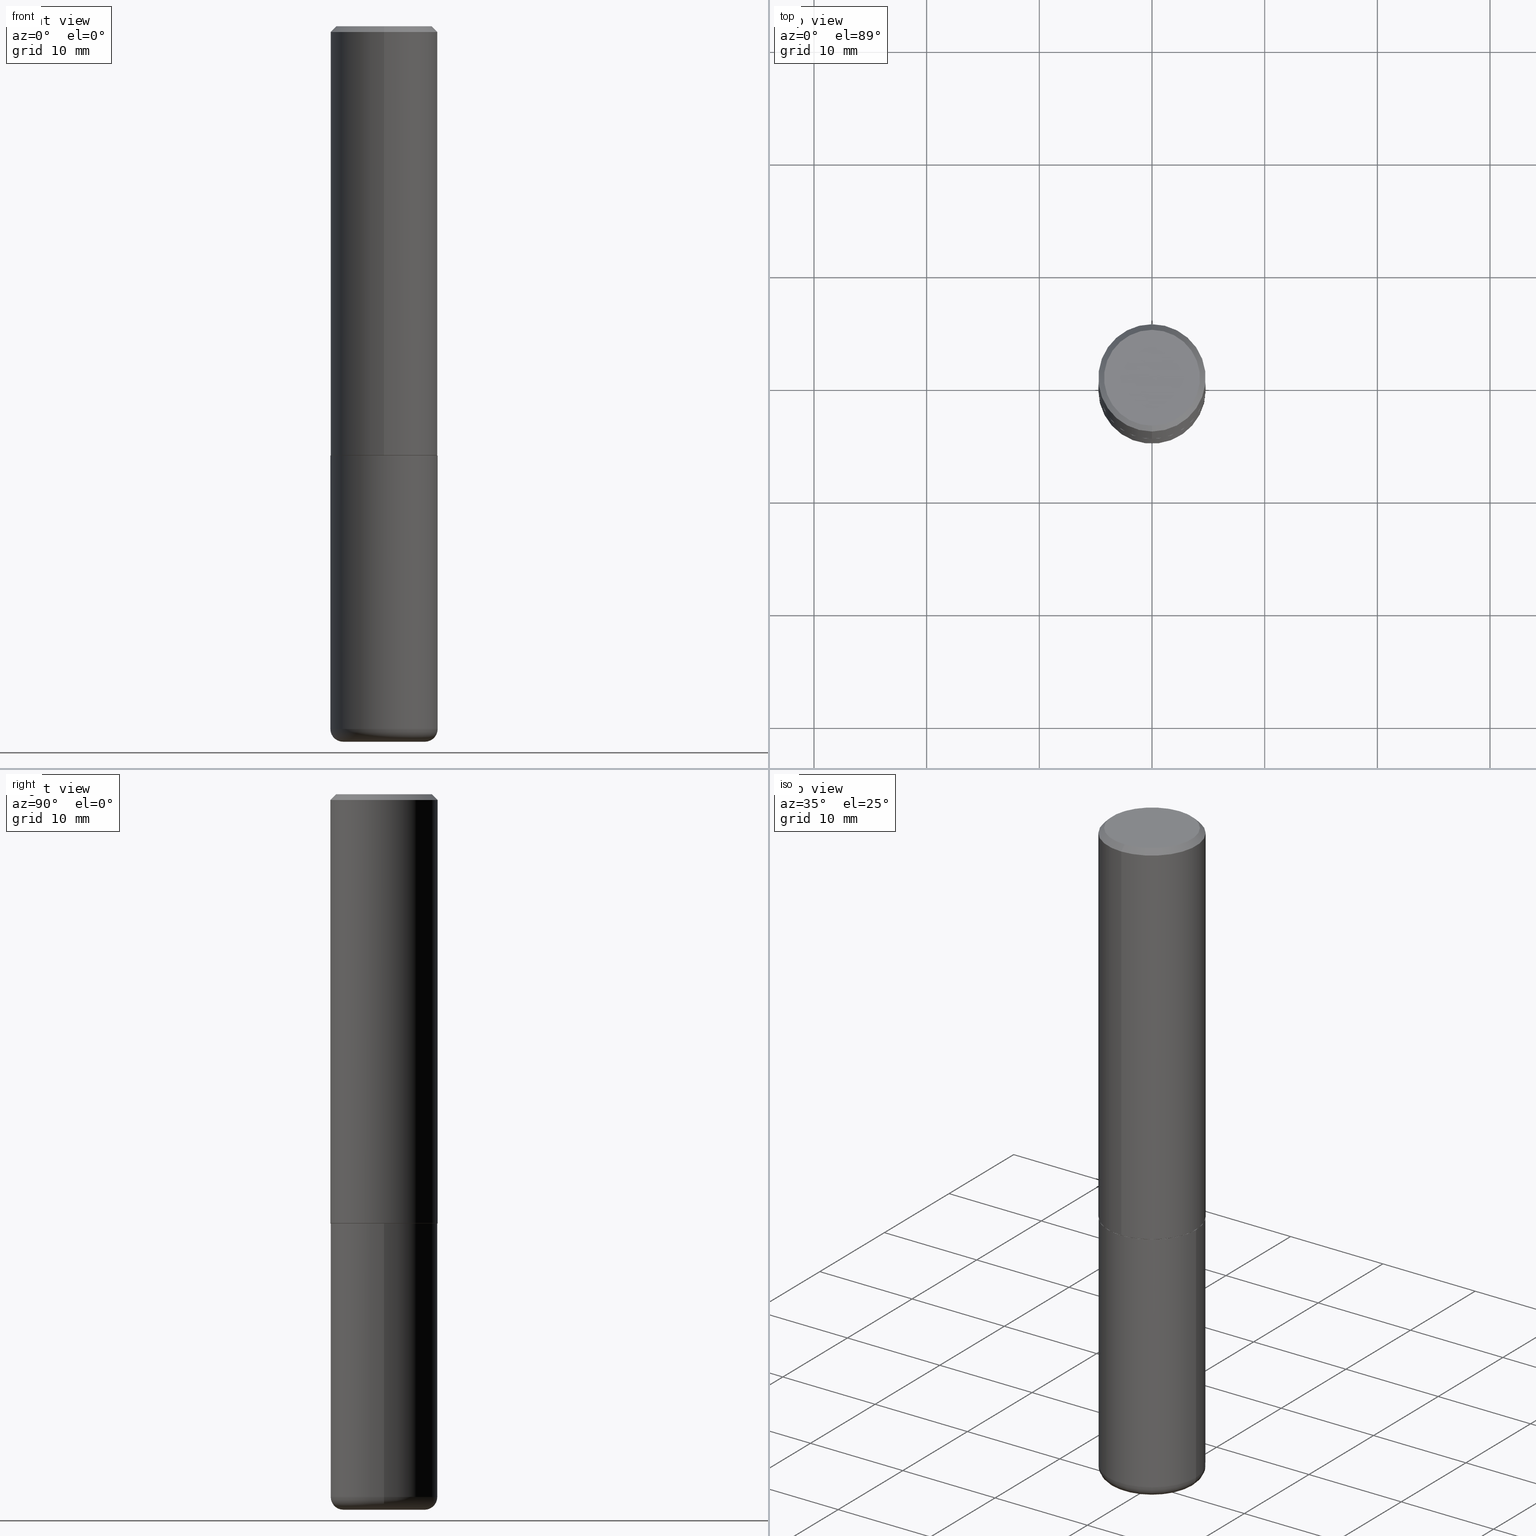
[diagram: canonical four-view strip — front | top / right | iso, engineering-drawing reading convention]
A machine part, canonical four-view strip (front | top / right | iso — engineering-drawing reading convention). The complete STEP part file that produces these views, byte-faithful:
ISO-10303-21;
HEADER;
FILE_DESCRIPTION (( 'STEP AP203' ),
    '1' );
FILE_NAME ('38251.STEP',
    '2024-03-02T19:41:31',
    ( '' ),
    ( '' ),
    'SwSTEP 2.0',
    'SolidWorks 2023',
    '' );
FILE_SCHEMA (( 'CONFIG_CONTROL_DESIGN' ));
ENDSEC;

DATA;
#1 = ADVANCED_FACE ( 'NONE', ( #137 ), #7, .T. ) ;
#2 = VERTEX_POINT ( 'NONE', #164 ) ;
#3 = APPLICATION_PROTOCOL_DEFINITION ( 'international standard', 'config_control_design', 1994, #359 ) ;
#4 = ADVANCED_FACE ( 'NONE', ( #395 ), #202, .T. ) ;
#5 = PERSON_AND_ORGANIZATION ( #144, #173 ) ;
#6 = CC_DESIGN_APPROVAL ( #399, ( #305 ) ) ;
#7 = CONICAL_SURFACE ( 'NONE', #277, 0.1874999999999999722, 0.7853981633974469467 ) ;
#8 = DIRECTION ( 'NONE',  ( -2.445468806185136597E-29, 3.491481338843145583E-15, 1.000000000000000000 ) ) ;
#9 = CALENDAR_DATE ( 2024, 2, 3 ) ;
#10 = AXIS2_PLACEMENT_3D ( 'NONE', #281, #157, #60 ) ;
#11 = VERTEX_POINT ( 'NONE', #292 ) ;
#12 = DIMENSIONAL_EXPONENTS ( 1.000000000000000000, 0.000000000000000000, 0.000000000000000000, 0.000000000000000000, 0.000000000000000000, 0.000000000000000000, 0.000000000000000000 ) ;
#13 = AXIS2_PLACEMENT_3D ( 'NONE', #333, #171, #109 ) ;
#14 = CARTESIAN_POINT ( 'NONE',  ( 6.003625919184510659E-29, -8.571586686859923311E-15, -2.455000000000000071 ) ) ;
#15 = ADVANCED_FACE ( 'NONE', ( #327 ), #37, .T. ) ;
#16 = CARTESIAN_POINT ( 'NONE',  ( -0.1425000000000000155, -7.559063288401780041E-15, -2.455000000000000071 ) ) ;
#17 = ADVANCED_BREP_SHAPE_REPRESENTATION ( '38251', ( #94, #362, #160 ), #348 ) ;
#18 = PLANE ( 'NONE',  #181 ) ;
#19 = PRODUCT_DEFINITION_SHAPE ( 'NONE', 'NONE',  #305 ) ;
#20 = CARTESIAN_POINT ( 'NONE',  ( 3.668203209277704895E-29, -5.237222008264718177E-15, -1.500000000000000222 ) ) ;
#21 = EDGE_CURVE ( 'NONE', #2, #255, #216, .T. ) ;
#22 = FACE_OUTER_BOUND ( 'NONE', #417, .T. ) ;
#23 = ORIENTED_EDGE ( 'NONE', *, *, #166, .T. ) ;
#24 = CIRCLE ( 'NONE', #339, 0.1874999999999999722 ) ;
#25 = DIRECTION ( 'NONE',  ( -2.445468806185136597E-29, 3.491481338843145583E-15, 1.000000000000000000 ) ) ;
#26 = ORIENTED_EDGE ( 'NONE', *, *, #341, .T. ) ;
#27 = PLANE ( 'NONE',  #237 ) ;
#28 = ORIENTED_EDGE ( 'NONE', *, *, #21, .F. ) ;
#29 = DIRECTION ( 'NONE',  ( 6.982962677686266711E-15, 1.000000000000000000, -3.483106191921935949E-15 ) ) ;
#30 = ORIENTED_EDGE ( 'NONE', *, *, #213, .F. ) ;
#31 = EDGE_CURVE ( 'NONE', #315, #383, #266, .T. ) ;
#32 = CARTESIAN_POINT ( 'NONE',  ( 6.113672015462842613E-29, -8.728703347107864943E-15, -2.500000000000000000 ) ) ;
#33 = ORIENTED_EDGE ( 'NONE', *, *, #312, .T. ) ;
#34 = ORIENTED_EDGE ( 'NONE', *, *, #104, .T. ) ;
#35 = CIRCLE ( 'NONE', #74, 0.1864999999999999714 ) ;
#36 = CARTESIAN_POINT ( 'NONE',  ( 0.000000000000000000, 0.000000000000000000, 0.000000000000000000 ) ) ;
#37 = CYLINDRICAL_SURFACE ( 'NONE', #113, 0.1875000000000000278 ) ;
#38 = DATE_AND_TIME ( #168, #407 ) ;
#39 = CC_DESIGN_PERSON_AND_ORGANIZATION_ASSIGNMENT ( #165, #326, ( #230 ) ) ;
#40 = DIRECTION ( 'NONE',  ( 2.445844892912588876E-29, -3.490942761243906817E-15, -1.000000000000000000 ) ) ;
#41 = AXIS2_PLACEMENT_3D ( 'NONE', #145, #273, #214 ) ;
#42 = AXIS2_PLACEMENT_3D ( 'NONE', #85, #408, #221 ) ;
#43 = DATE_AND_TIME ( #9, #123 ) ;
#44 = ORIENTED_EDGE ( 'NONE', *, *, #62, .F. ) ;
#45 = DIRECTION ( 'NONE',  ( -2.445844892912588876E-29, 3.490942761243906817E-15, 1.000000000000000000 ) ) ;
#46 = CC_DESIGN_PERSON_AND_ORGANIZATION_ASSIGNMENT ( #258, #205, ( #49 ) ) ;
#47 = CYLINDRICAL_SURFACE ( 'NONE', #238, 0.1875000000000000278 ) ;
#48 = LINE ( 'NONE', #179, #223 ) ;
#49 = PRODUCT ( '38251', '38251', '', ( #365 ) ) ;
#50 = FACE_OUTER_BOUND ( 'NONE', #257, .T. ) ;
#51 = EDGE_CURVE ( 'NONE', #232, #185, #167, .T. ) ;
#52 = LOCAL_TIME ( 14, 41, 31.00000000000000000, #391 ) ;
#53 = FACE_OUTER_BOUND ( 'NONE', #106, .T. ) ;
#54 = CARTESIAN_POINT ( 'NONE',  ( -1.217738394604446442E-15, -0.1675000000000000100, 5.547631133297791179E-16 ) ) ;
#55 = VERTEX_POINT ( 'NONE', #263 ) ;
#56 = DIRECTION ( 'NONE',  ( -6.982962677686265922E-15, -1.000000000000000000, 3.490942761243906817E-15 ) ) ;
#57 = ORIENTED_EDGE ( 'NONE', *, *, #175, .T. ) ;
#58 = CIRCLE ( 'NONE', #415, 0.1425000000000000155 ) ;
#59 = AXIS2_PLACEMENT_3D ( 'NONE', #297, #208, #268 ) ;
#60 = DIRECTION ( 'NONE',  ( -6.982962677686265922E-15, -1.000000000000000000, 2.913971193241877611E-15 ) ) ;
#61 = ORIENTED_EDGE ( 'NONE', *, *, #393, .F. ) ;
#62 = EDGE_CURVE ( 'NONE', #185, #55, #295, .T. ) ;
#63 = EDGE_LOOP ( 'NONE', ( #224, #386, #354, #220 ) ) ;
#64 = CARTESIAN_POINT ( 'NONE',  ( 1.325162202192623128E-15, 0.1864999999999947533, -1.500000000000000888 ) ) ;
#65 = ORIENTED_EDGE ( 'NONE', *, *, #213, .T. ) ;
#66 = CC_DESIGN_SECURITY_CLASSIFICATION ( #230, ( #375 ) ) ;
#67 = AXIS2_PLACEMENT_3D ( 'NONE', #271, #111, #338 ) ;
#68 = ORIENTED_EDGE ( 'NONE', *, *, #79, .F. ) ;
#69 = EDGE_CURVE ( 'NONE', #409, #55, #24, .T. ) ;
#70 = APPROVAL_STATUS ( 'not_yet_approved' ) ;
#71 = CARTESIAN_POINT ( 'NONE',  ( 0.000000000000000000, 0.000000000000000000, 0.000000000000000000 ) ) ;
#72 = CC_DESIGN_PERSON_AND_ORGANIZATION_ASSIGNMENT ( #360, #387, ( #375 ) ) ;
#73 = CALENDAR_DATE ( 2024, 2, 3 ) ;
#74 = AXIS2_PLACEMENT_3D ( 'NONE', #225, #377, #125 ) ;
#75 = DIRECTION ( 'NONE',  ( -6.982962677686266711E-15, -1.000000000000000000, 3.483106191921935949E-15 ) ) ;
#76 = CIRCLE ( 'NONE', #320, 0.1675000000000000100 ) ;
#77 = FACE_OUTER_BOUND ( 'NONE', #100, .T. ) ;
#78 = ORIENTED_EDGE ( 'NONE', *, *, #341, .F. ) ;
#79 = EDGE_CURVE ( 'NONE', #411, #409, #133, .T. ) ;
#80 = DIRECTION ( 'NONE',  ( 1.000000000000000000, -6.982962677686265922E-15, 4.876176775795935793E-29 ) ) ;
#81 = DIRECTION ( 'NONE',  ( -2.445844892912589156E-29, 3.490942761243906423E-15, 1.000000000000000000 ) ) ;
#82 = VECTOR ( 'NONE', #302, 39.37007874015748143 ) ;
#83 = ADVANCED_FACE ( 'NONE', ( #77 ), #206, .T. ) ;
#84 = AXIS2_PLACEMENT_3D ( 'NONE', #414, #194, #88 ) ;
#85 = CARTESIAN_POINT ( 'NONE',  ( 3.668767339368883594E-29, -5.236414141865861409E-15, -1.500000000000000444 ) ) ;
#86 = DIRECTION ( 'NONE',  ( -2.445468806185136597E-29, 3.491481338843145583E-15, 1.000000000000000000 ) ) ;
#87 = TOROIDAL_SURFACE ( 'NONE', #306, 0.1425000000000000155, 0.04499999999999996364 ) ;
#88 = DIRECTION ( 'NONE',  ( 1.000000000000000000, -6.982962677686273810E-15, 0.000000000000000000 ) ) ;
#89 = ORIENTED_EDGE ( 'NONE', *, *, #62, .T. ) ;
#90 =( LENGTH_UNIT ( ) NAMED_UNIT ( * ) SI_UNIT ( $, .METRE. ) );
#91 = EDGE_LOOP ( 'NONE', ( #380, #251 ) ) ;
#92 = AXIS2_PLACEMENT_3D ( 'NONE', #374, #45, #112 ) ;
#93 =( CONVERSION_BASED_UNIT ( 'INCH', #381 ) LENGTH_UNIT ( ) NAMED_UNIT ( #12 ) );
#94 = MANIFOLD_SOLID_BREP ( 'Body-Move/Copy2[1]', #241 ) ;
#95 = ORIENTED_EDGE ( 'NONE', *, *, #301, .T. ) ;
#96 = CARTESIAN_POINT ( 'NONE',  ( -0.1874999999999999722, -7.239319057309735462E-15, -2.455000000000000071 ) ) ;
#97 = APPROVAL ( #70, 'UNSPECIFIED' ) ;
#98 = ORIENTED_EDGE ( 'NONE', *, *, #31, .T. ) ;
#99 = APPROVAL_ROLE ( '' ) ;
#100 = EDGE_LOOP ( 'NONE', ( #61, #103 ) ) ;
#101 = VECTOR ( 'NONE', #366, 39.37007874015748143 ) ;
#102 = APPROVAL_STATUS ( 'not_yet_approved' ) ;
#103 = ORIENTED_EDGE ( 'NONE', *, *, #290, .F. ) ;
#104 = EDGE_CURVE ( 'NONE', #321, #409, #48, .T. ) ;
#105 = CARTESIAN_POINT ( 'NONE',  ( -1.302322539388451720E-15, -0.1865000000000051894, -1.499999999999999778 ) ) ;
#106 = EDGE_LOOP ( 'NONE', ( #162, #299, #250, #195 ) ) ;
#107 = COORDINATED_UNIVERSAL_TIME_OFFSET ( 5, 0, .BEHIND. ) ;
#108 = EDGE_CURVE ( 'NONE', #185, #321, #335, .T. ) ;
#109 = DIRECTION ( 'NONE',  ( -1.000000000000000000, 6.982962677686265922E-15, -4.876176775795935793E-29 ) ) ;
#110 = CYLINDRICAL_SURFACE ( 'NONE', #252, 0.1875000000000000833 ) ;
#111 = DIRECTION ( 'NONE',  ( -2.445844892912588876E-29, 3.490942761243906817E-15, 1.000000000000000000 ) ) ;
#112 = DIRECTION ( 'NONE',  ( -6.982962677686266711E-15, -1.000000000000000000, 3.483106191921935949E-15 ) ) ;
#113 = AXIS2_PLACEMENT_3D ( 'NONE', #236, #8, #392 ) ;
#114 = ADVANCED_FACE ( 'NONE', ( #53 ), #152, .T. ) ;
#115 = DIRECTION ( 'NONE',  ( -2.445468806185136597E-29, 3.491481338843145583E-15, 1.000000000000000000 ) ) ;
#116 = EDGE_CURVE ( 'NONE', #411, #379, #358, .T. ) ;
#117 = ORIENTED_EDGE ( 'NONE', *, *, #69, .F. ) ;
#118 = CARTESIAN_POINT ( 'NONE',  ( 6.113672015462842613E-29, -8.728703347107864943E-15, -2.500000000000000000 ) ) ;
#119 = EDGE_LOOP ( 'NONE', ( #259, #248, #222, #187 ) ) ;
#120 = EDGE_LOOP ( 'NONE', ( #278, #23, #26, #275 ) ) ;
#121 = FACE_OUTER_BOUND ( 'NONE', #63, .T. ) ;
#122 = ORIENTED_EDGE ( 'NONE', *, *, #253, .T. ) ;
#123 = LOCAL_TIME ( 14, 41, 31.00000000000000000, #389 ) ;
#124 = AXIS2_PLACEMENT_3D ( 'NONE', #174, #337, #370 ) ;
#125 = DIRECTION ( 'NONE',  ( -6.982962677686265922E-15, -1.000000000000000000, 2.929595703661408850E-15 ) ) ;
#126 = ORIENTED_EDGE ( 'NONE', *, *, #141, .T. ) ;
#127 = ORIENTED_EDGE ( 'NONE', *, *, #175, .F. ) ;
#128 = CONICAL_SURFACE ( 'NONE', #367, 0.1874999999999999722, 0.7853981633974469467 ) ;
#129 = CLOSED_SHELL ( 'NONE', ( #267, #197, #1, #405, #4, #114, #403, #285 ) ) ;
#130 = PERSON_AND_ORGANIZATION ( #144, #173 ) ;
#131 = CARTESIAN_POINT ( 'NONE',  ( 4.891689785825187560E-31, -6.981885522487828820E-17, -0.02000000000000004205 ) ) ;
#132 = APPROVAL_DATE_TIME ( #228, #399 ) ;
#133 = LINE ( 'NONE', #169, #101 ) ;
#134 = ADVANCED_FACE ( 'NONE', ( #404 ), #300, .T. ) ;
#135 = DATE_TIME_ROLE ( 'creation_date' ) ;
#136 = CC_DESIGN_DATE_AND_TIME_ASSIGNMENT ( #43, #135, ( #305 ) ) ;
#137 = FACE_OUTER_BOUND ( 'NONE', #150, .T. ) ;
#138 = AXIS2_PLACEMENT_3D ( 'NONE', #71, #331, #262 ) ;
#139 = CIRCLE ( 'NONE', #418, 0.04499999999999996364 ) ;
#140 = LINE ( 'NONE', #340, #368 ) ;
#141 = EDGE_CURVE ( 'NONE', #383, #255, #400, .T. ) ;
#142 = CARTESIAN_POINT ( 'NONE',  ( 0.000000000000000000, 0.000000000000000000, 0.000000000000000000 ) ) ;
#143 = DIRECTION ( 'NONE',  ( -2.445844892912588876E-29, 3.490942761243906817E-15, 1.000000000000000000 ) ) ;
#144 = PERSON ( 'UNSPECIFIED', 'UNSPECIFIED', 'UNSPECIFIED', ('UNSPECIFIED'), ('UNSPECIFIED'), ('UNSPECIFIED') ) ;
#145 = CARTESIAN_POINT ( 'NONE',  ( 3.666321494475970828E-29, -5.232923199104616895E-15, -1.499000000000000110 ) ) ;
#146 = ADVANCED_FACE ( 'NONE', ( #50 ), #47, .T. ) ;
#147 = CARTESIAN_POINT ( 'NONE',  ( -0.1875000000000000278, 1.332267629550188046E-15, -9.223003294227947991E-30 ) ) ;
#148 = EDGE_LOOP ( 'NONE', ( #346, #34, #127, #44 ) ) ;
#149 = CARTESIAN_POINT ( 'NONE',  ( 1.169646248512449595E-15, 0.1675000000000000100, -5.997178120976420969E-16 ) ) ;
#150 = EDGE_LOOP ( 'NONE', ( #317, #280, #57, #68 ) ) ;
#151 = APPROVAL_PERSON_ORGANIZATION ( #207, #399, #99 ) ;
#152 = CONICAL_SURFACE ( 'NONE', #416, 0.1864999999999999714, 0.7853981633973801113 ) ;
#153 = DIRECTION ( 'NONE',  ( -6.982962677686265922E-15, -1.000000000000000000, 3.490942761243906423E-15 ) ) ;
#154 = VERTEX_POINT ( 'NONE', #274 ) ;
#155 = CARTESIAN_POINT ( 'NONE',  ( 1.309305502066175205E-15, 0.1874999999999999167, -0.02000000000000069431 ) ) ;
#156 = VERTEX_POINT ( 'NONE', #307 ) ;
#157 = DIRECTION ( 'NONE',  ( -2.445844892912588876E-29, 3.490942761243906817E-15, 1.000000000000000000 ) ) ;
#158 = EDGE_LOOP ( 'NONE', ( #343, #95, #89, #117 ) ) ;
#159 = CIRCLE ( 'NONE', #401, 0.1875000000000000278 ) ;
#160 = AXIS2_PLACEMENT_3D ( 'NONE', #36, #289, #233 ) ;
#161 = DIRECTION ( 'NONE',  ( -2.445468806185136597E-29, 3.491481338843145583E-15, 1.000000000000000000 ) ) ;
#162 = ORIENTED_EDGE ( 'NONE', *, *, #312, .F. ) ;
#163 = APPROVAL_STATUS ( 'not_yet_approved' ) ;
#164 = CARTESIAN_POINT ( 'NONE',  ( 0.1875000000000000278, -6.546527510330893974E-15, -1.500000000000000222 ) ) ;
#165 = PERSON_AND_ORGANIZATION ( #144, #173 ) ;
#166 = EDGE_CURVE ( 'NONE', #383, #315, #293, .T. ) ;
#167 = LINE ( 'NONE', #105, #376 ) ;
#168 = CALENDAR_DATE ( 2024, 2, 3 ) ;
#169 = CARTESIAN_POINT ( 'NONE',  ( 1.309305502066175205E-15, 0.1874999999999999167, -0.02000000000000069431 ) ) ;
#170 = APPLICATION_PROTOCOL_DEFINITION ( 'international standard', 'config_control_design', 1994, #200 ) ;
#171 = DIRECTION ( 'NONE',  ( 2.438088387897960049E-29, -3.491481338843145188E-15, -1.000000000000000000 ) ) ;
#172 = DIRECTION ( 'NONE',  ( 1.000000000000000000, -6.982962677686266711E-15, 0.000000000000000000 ) ) ;
#173 = ORGANIZATION ( 'UNSPECIFIED', 'UNSPECIFIED', '' ) ;
#174 = CARTESIAN_POINT ( 'NONE',  ( 3.668767339368883594E-29, -5.236414141865861409E-15, -1.500000000000000444 ) ) ;
#175 = EDGE_CURVE ( 'NONE', #55, #409, #349, .T. ) ;
#176 = CARTESIAN_POINT ( 'NONE',  ( 6.003625919184510659E-29, -8.571586686859923311E-15, -2.455000000000000071 ) ) ;
#177 = DIRECTION ( 'NONE',  ( -6.982962677686265922E-15, -1.000000000000000000, 2.929595703661408850E-15 ) ) ;
#178 = VECTOR ( 'NONE', #249, 39.37007874015748143 ) ;
#179 = CARTESIAN_POINT ( 'NONE',  ( 1.332267629550188243E-15, 0.1875000000000000833, -6.545517677332327747E-16 ) ) ;
#180 = LOCAL_TIME ( 14, 41, 31.00000000000000000, #355 ) ;
#181 = AXIS2_PLACEMENT_3D ( 'NONE', #20, #240, #372 ) ;
#182 = FACE_OUTER_BOUND ( 'NONE', #352, .T. ) ;
#183 = CC_DESIGN_PERSON_AND_ORGANIZATION_ASSIGNMENT ( #5, #296, ( #305 ) ) ;
#184 = DIRECTION ( 'NONE',  ( 1.000000000000000000, -6.982962677686269077E-15, 4.883557194083113462E-29 ) ) ;
#185 = VERTEX_POINT ( 'NONE', #398 ) ;
#186 = CARTESIAN_POINT ( 'NONE',  ( 3.668767339368883594E-29, -5.236414141865861409E-15, -1.500000000000000444 ) ) ;
#187 = ORIENTED_EDGE ( 'NONE', *, *, #166, .F. ) ;
#188 = AXIS2_PLACEMENT_3D ( 'NONE', #14, #245, #211 ) ;
#189 = CARTESIAN_POINT ( 'NONE',  ( 1.239475875289312499E-15, 0.1675000000000000100, -6.147027116869298551E-16 ) ) ;
#190 = ORIENTED_EDGE ( 'NONE', *, *, #283, .F. ) ;
#191 = FACE_OUTER_BOUND ( 'NONE', #91, .T. ) ;
#192 = ORIENTED_EDGE ( 'NONE', *, *, #298, .F. ) ;
#193 = AXIS2_PLACEMENT_3D ( 'NONE', #32, #161, #246 ) ;
#194 = DIRECTION ( 'NONE',  ( -6.982962677686266711E-15, -1.000000000000000000, 3.491481338843145583E-15 ) ) ;
#195 = ORIENTED_EDGE ( 'NONE', *, *, #301, .F. ) ;
#196 = APPROVAL_PERSON_ORGANIZATION ( #324, #97, #291 ) ;
#197 = ADVANCED_FACE ( 'NONE', ( #210 ), #110, .T. ) ;
#198 = DATE_TIME_ROLE ( 'classification_date' ) ;
#199 = CARTESIAN_POINT ( 'NONE',  ( 3.668203209277704895E-29, -5.237222008264718177E-15, -1.500000000000000222 ) ) ;
#200 = APPLICATION_CONTEXT ( 'configuration controlled 3d designs of mechanical parts and assemblies' ) ;
#201 = SECURITY_CLASSIFICATION_LEVEL ( 'unclassified' ) ;
#202 = CYLINDRICAL_SURFACE ( 'NONE', #138, 0.1875000000000000833 ) ;
#203 = DATE_AND_TIME ( #73, #52 ) ;
#204 = ORIENTED_EDGE ( 'NONE', *, *, #31, .F. ) ;
#205 = PERSON_AND_ORGANIZATION_ROLE ( 'design_owner' ) ;
#206 = PLANE ( 'NONE',  #13 ) ;
#207 = PERSON_AND_ORGANIZATION ( #144, #173 ) ;
#208 = DIRECTION ( 'NONE',  ( -2.445468806185136597E-29, 3.491481338843145583E-15, 1.000000000000000000 ) ) ;
#209 = LOCAL_TIME ( 14, 41, 31.00000000000000000, #256 ) ;
#210 = FACE_OUTER_BOUND ( 'NONE', #148, .T. ) ;
#211 = DIRECTION ( 'NONE',  ( 1.000000000000000000, -6.982962677686266711E-15, 0.000000000000000000 ) ) ;
#212 = CARTESIAN_POINT ( 'NONE',  ( 3.668767339368883594E-29, -5.236414141865861409E-15, -1.500000000000000444 ) ) ;
#213 = EDGE_CURVE ( 'NONE', #232, #156, #382, .T. ) ;
#214 = DIRECTION ( 'NONE',  ( -6.982962677686265922E-15, -1.000000000000000000, 2.913971193241877611E-15 ) ) ;
#215 = VECTOR ( 'NONE', #316, 39.37007874015748143 ) ;
#216 = CIRCLE ( 'NONE', #260, 0.1875000000000000278 ) ;
#217 = CARTESIAN_POINT ( 'NONE',  ( 1.332267629550206781E-15, 0.1874999999999949485, -1.499000000000000554 ) ) ;
#218 = EDGE_CURVE ( 'NONE', #379, #55, #140, .T. ) ;
#219 = LINE ( 'NONE', #385, #215 ) ;
#220 = ORIENTED_EDGE ( 'NONE', *, *, #69, .T. ) ;
#221 = DIRECTION ( 'NONE',  ( -6.982962677686265922E-15, -1.000000000000000000, 2.929595703661408850E-15 ) ) ;
#222 = ORIENTED_EDGE ( 'NONE', *, *, #283, .T. ) ;
#223 = VECTOR ( 'NONE', #81, 39.37007874015748143 ) ;
#224 = ORIENTED_EDGE ( 'NONE', *, *, #218, .F. ) ;
#225 = CARTESIAN_POINT ( 'NONE',  ( 3.668767339368883594E-29, -5.236414141865861409E-15, -1.500000000000000444 ) ) ;
#226 = ADVANCED_FACE ( 'NONE', ( #182 ), #18, .F. ) ;
#227 = ORIENTED_EDGE ( 'NONE', *, *, #393, .T. ) ;
#228 = DATE_AND_TIME ( #332, #209 ) ;
#229 = DIRECTION ( 'NONE',  ( -2.445844892912589156E-29, 3.490942761243906423E-15, 1.000000000000000000 ) ) ;
#230 = SECURITY_CLASSIFICATION ( '', '', #201 ) ;
#231 = CALENDAR_DATE ( 2024, 2, 3 ) ;
#232 = VERTEX_POINT ( 'NONE', #303 ) ;
#233 = DIRECTION ( 'NONE',  ( 1.000000000000000000, 0.000000000000000000, 0.000000000000000000 ) ) ;
#234 = CARTESIAN_POINT ( 'NONE',  ( -1.309305502066175600E-15, -0.1875000000000000833, 6.545517677332327747E-16 ) ) ;
#235 = PRODUCT_RELATED_PRODUCT_CATEGORY ( 'detail', '', ( #49 ) ) ;
#236 = CARTESIAN_POINT ( 'NONE',  ( 0.000000000000000000, 0.000000000000000000, 0.000000000000000000 ) ) ;
#237 = AXIS2_PLACEMENT_3D ( 'NONE', #186, #313, #153 ) ;
#238 = AXIS2_PLACEMENT_3D ( 'NONE', #142, #86, #80 ) ;
#239 = DIRECTION ( 'NONE',  ( -6.982962677686266711E-15, -1.000000000000000000, 3.490942761243906423E-15 ) ) ;
#240 = DIRECTION ( 'NONE',  ( 2.438088387897960049E-29, -3.491481338843145188E-15, -1.000000000000000000 ) ) ;
#241 = CLOSED_SHELL ( 'NONE', ( #146, #134, #226, #15, #336, #83 ) ) ;
#242 = DIRECTION ( 'NONE',  ( 7.105427357601001859E-15, 1.000000000000000000, -3.491481338843145583E-15 ) ) ;
#243 = CONICAL_SURFACE ( 'NONE', #42, 0.1864999999999999714, 0.7853981633973801113 ) ;
#244 = CARTESIAN_POINT ( 'NONE',  ( -0.1875000000000000278, -5.572136718012132501E-15, -1.500000000000000222 ) ) ;
#245 = DIRECTION ( 'NONE',  ( -2.445468806185136597E-29, 3.491481338843145583E-15, 1.000000000000000000 ) ) ;
#246 = DIRECTION ( 'NONE',  ( 1.000000000000000000, -6.982962677686266711E-15, 0.000000000000000000 ) ) ;
#247 = CARTESIAN_POINT ( 'NONE',  ( 6.003625919184510659E-29, -8.571586686859923311E-15, -2.455000000000000071 ) ) ;
#248 = ORIENTED_EDGE ( 'NONE', *, *, #290, .T. ) ;
#249 = DIRECTION ( 'NONE',  ( 5.024295867787719235E-15, 0.7071067811865017205, 0.7071067811865933139 ) ) ;
#250 = ORIENTED_EDGE ( 'NONE', *, *, #51, .T. ) ;
#251 = ORIENTED_EDGE ( 'NONE', *, *, #369, .T. ) ;
#252 = AXIS2_PLACEMENT_3D ( 'NONE', #304, #308, #239 ) ;
#253 = EDGE_CURVE ( 'NONE', #11, #383, #139, .T. ) ;
#254 = DIRECTION ( 'NONE',  ( -2.445468806185136597E-29, 3.491481338843145583E-15, 1.000000000000000000 ) ) ;
#255 = VERTEX_POINT ( 'NONE', #244 ) ;
#256 = COORDINATED_UNIVERSAL_TIME_OFFSET ( 5, 0, .BEHIND. ) ;
#257 = EDGE_LOOP ( 'NONE', ( #98, #126, #28, #78 ) ) ;
#258 = PERSON_AND_ORGANIZATION ( #144, #173 ) ;
#259 = ORIENTED_EDGE ( 'NONE', *, *, #253, .F. ) ;
#260 = AXIS2_PLACEMENT_3D ( 'NONE', #199, #329, #172 ) ;
#261 = PERSON_AND_ORGANIZATION ( #144, #173 ) ;
#262 = DIRECTION ( 'NONE',  ( -6.982962677686266711E-15, -1.000000000000000000, 3.490942761243906423E-15 ) ) ;
#263 = CARTESIAN_POINT ( 'NONE',  ( -1.286343374582161379E-15, -0.1875000000000000555, -0.01999999999999938979 ) ) ;
#264 = CIRCLE ( 'NONE', #10, 0.1875000000000001943 ) ;
#265 = DATE_AND_TIME ( #231, #180 ) ;
#266 = CIRCLE ( 'NONE', #59, 0.1875000000000000278 ) ;
#267 = ADVANCED_FACE ( 'NONE', ( #373 ), #243, .T. ) ;
#268 = DIRECTION ( 'NONE',  ( 1.000000000000000000, -6.982962677686266711E-15, 0.000000000000000000 ) ) ;
#269 = CC_DESIGN_DATE_AND_TIME_ASSIGNMENT ( #38, #198, ( #230 ) ) ;
#270 = DIRECTION ( 'NONE',  ( -2.445468806185136597E-29, 3.491481338843145583E-15, 1.000000000000000000 ) ) ;
#271 = CARTESIAN_POINT ( 'NONE',  ( 7.330148026253442751E-46, -1.046228534983812136E-31, -2.996979917857535013E-17 ) ) ;
#272 = DIRECTION ( 'NONE',  ( -4.851104656540957175E-15, -0.7071067811865490160, -0.7071067811865460184 ) ) ;
#273 = DIRECTION ( 'NONE',  ( -2.445844892912588876E-29, 3.490942761243906817E-15, 1.000000000000000000 ) ) ;
#274 = CARTESIAN_POINT ( 'NONE',  ( 0.1425000000000000155, -9.723775528678158264E-15, -2.500000000000000000 ) ) ;
#275 = ORIENTED_EDGE ( 'NONE', *, *, #325, .F. ) ;
#276 = LINE ( 'NONE', #64, #178 ) ;
#277 = AXIS2_PLACEMENT_3D ( 'NONE', #131, #40, #361 ) ;
#278 = ORIENTED_EDGE ( 'NONE', *, *, #141, .F. ) ;
#279 = CARTESIAN_POINT ( 'NONE',  ( 4.891689785825187560E-31, -6.981885522487828820E-17, -0.02000000000000004205 ) ) ;
#280 = ORIENTED_EDGE ( 'NONE', *, *, #218, .T. ) ;
#281 = CARTESIAN_POINT ( 'NONE',  ( 3.666321494475970828E-29, -5.232923199104616895E-15, -1.499000000000000110 ) ) ;
#282 = ORIENTED_EDGE ( 'NONE', *, *, #108, .F. ) ;
#283 = EDGE_CURVE ( 'NONE', #154, #315, #384, .T. ) ;
#284 =( NAMED_UNIT ( * ) PLANE_ANGLE_UNIT ( ) SI_UNIT ( $, .RADIAN. ) );
#285 = ADVANCED_FACE ( 'NONE', ( #191 ), #319, .F. ) ;
#286 = UNCERTAINTY_MEASURE_WITH_UNIT (LENGTH_MEASURE( 1.000000000000000082E-05 ), #93, 'distance_accuracy_value', 'NONE');
#287 = APPROVAL_DATE_TIME ( #265, #318 ) ;
#288 = ORIENTED_EDGE ( 'NONE', *, *, #325, .T. ) ;
#289 = DIRECTION ( 'NONE',  ( 0.000000000000000000, 0.000000000000000000, 1.000000000000000000 ) ) ;
#290 = EDGE_CURVE ( 'NONE', #11, #154, #309, .T. ) ;
#291 = APPROVAL_ROLE ( '' ) ;
#292 = CARTESIAN_POINT ( 'NONE',  ( -0.1425000000000000155, -7.477749502979727779E-15, -2.500000000000000000 ) ) ;
#293 = CIRCLE ( 'NONE', #188, 0.1875000000000000278 ) ;
#294 = SHAPE_DEFINITION_REPRESENTATION ( #19, #17 ) ;
#295 = LINE ( 'NONE', #234, #322 ) ;
#296 = PERSON_AND_ORGANIZATION_ROLE ( 'creator' ) ;
#297 = CARTESIAN_POINT ( 'NONE',  ( 6.003625919184510659E-29, -8.571586686859923311E-15, -2.455000000000000071 ) ) ;
#298 = EDGE_CURVE ( 'NONE', #156, #232, #35, .T. ) ;
#299 = ORIENTED_EDGE ( 'NONE', *, *, #298, .T. ) ;
#300 = TOROIDAL_SURFACE ( 'NONE', #390, 0.1425000000000000155, 0.04499999999999996364 ) ;
#301 = EDGE_CURVE ( 'NONE', #321, #185, #264, .T. ) ;
#302 = DIRECTION ( 'NONE',  ( -2.445468806185136877E-29, 3.491481338843145188E-15, 1.000000000000000000 ) ) ;
#303 = CARTESIAN_POINT ( 'NONE',  ( -1.302322539388451720E-15, -0.1865000000000051894, -1.499999999999999778 ) ) ;
#304 = CARTESIAN_POINT ( 'NONE',  ( 0.000000000000000000, 0.000000000000000000, 0.000000000000000000 ) ) ;
#305 = PRODUCT_DEFINITION ( 'UNKNOWN', '', #375, #323 ) ;
#306 = AXIS2_PLACEMENT_3D ( 'NONE', #247, #115, #184 ) ;
#307 = CARTESIAN_POINT ( 'NONE',  ( 1.328714915871423829E-15, 0.1864999999999947533, -1.500000000000000888 ) ) ;
#308 = DIRECTION ( 'NONE',  ( -2.445844892912588876E-29, 3.490942761243906817E-15, 1.000000000000000000 ) ) ;
#309 = CIRCLE ( 'NONE', #193, 0.1425000000000000155 ) ;
#310 = DIRECTION ( 'NONE',  ( 1.000000000000000000, -6.982962677686266711E-15, 0.000000000000000000 ) ) ;
#311 = ORIENTED_EDGE ( 'NONE', *, *, #51, .F. ) ;
#312 = EDGE_CURVE ( 'NONE', #156, #321, #276, .T. ) ;
#313 = DIRECTION ( 'NONE',  ( -2.445844892912588876E-29, 3.490942761243906423E-15, 1.000000000000000000 ) ) ;
#314 = APPROVAL_PERSON_ORGANIZATION ( #130, #318, #394 ) ;
#315 = VERTEX_POINT ( 'NONE', #406 ) ;
#316 = DIRECTION ( 'NONE',  ( -2.445468806185136877E-29, 3.491481338843145188E-15, 1.000000000000000000 ) ) ;
#317 = ORIENTED_EDGE ( 'NONE', *, *, #369, .F. ) ;
#318 = APPROVAL ( #102, 'UNSPECIFIED' ) ;
#319 = PLANE ( 'NONE',  #371 ) ;
#320 = AXIS2_PLACEMENT_3D ( 'NONE', #342, #345, #56 ) ;
#321 = VERTEX_POINT ( 'NONE', #217 ) ;
#322 = VECTOR ( 'NONE', #229, 39.37007874015748143 ) ;
#323 = DESIGN_CONTEXT ( 'detailed design', #200, 'design' ) ;
#324 = PERSON_AND_ORGANIZATION ( #144, #173 ) ;
#325 = EDGE_CURVE ( 'NONE', #255, #2, #159, .T. ) ;
#326 = PERSON_AND_ORGANIZATION_ROLE ( 'classification_officer' ) ;
#327 = FACE_OUTER_BOUND ( 'NONE', #120, .T. ) ;
#328 = APPROVAL_DATE_TIME ( #203, #97 ) ;
#329 = DIRECTION ( 'NONE',  ( -2.445468806185136597E-29, 3.491481338843145583E-15, 1.000000000000000000 ) ) ;
#330 =( NAMED_UNIT ( * ) SI_UNIT ( $, .STERADIAN. ) SOLID_ANGLE_UNIT ( ) );
#331 = DIRECTION ( 'NONE',  ( -2.445844892912588876E-29, 3.490942761243906817E-15, 1.000000000000000000 ) ) ;
#332 = CALENDAR_DATE ( 2024, 2, 3 ) ;
#333 = CARTESIAN_POINT ( 'NONE',  ( 6.113672015462842613E-29, -8.728703347107864943E-15, -2.500000000000000000 ) ) ;
#334 = DIRECTION ( 'NONE',  ( 1.000000000000000000, -6.982962677686269077E-15, 4.883557194083113462E-29 ) ) ;
#335 = CIRCLE ( 'NONE', #41, 0.1875000000000001943 ) ;
#336 = ADVANCED_FACE ( 'NONE', ( #378 ), #87, .T. ) ;
#337 = DIRECTION ( 'NONE',  ( -2.445844892912588876E-29, 3.490942761243906817E-15, 1.000000000000000000 ) ) ;
#338 = DIRECTION ( 'NONE',  ( -6.982962677686265922E-15, -1.000000000000000000, 3.490942761243906817E-15 ) ) ;
#339 = AXIS2_PLACEMENT_3D ( 'NONE', #357, #364, #75 ) ;
#340 = CARTESIAN_POINT ( 'NONE',  ( -1.286343374582161379E-15, -0.1875000000000000555, -0.01999999999999938979 ) ) ;
#341 = EDGE_CURVE ( 'NONE', #315, #2, #219, .T. ) ;
#342 = CARTESIAN_POINT ( 'NONE',  ( 7.330148026253442751E-46, -1.046228534983812136E-31, -2.996979917857535013E-17 ) ) ;
#343 = ORIENTED_EDGE ( 'NONE', *, *, #104, .F. ) ;
#344 = CC_DESIGN_PERSON_AND_ORGANIZATION_ASSIGNMENT ( #261, #363, ( #375 ) ) ;
#345 = DIRECTION ( 'NONE',  ( -2.445844892912588876E-29, 3.490942761243906817E-15, 1.000000000000000000 ) ) ;
#346 = ORIENTED_EDGE ( 'NONE', *, *, #108, .T. ) ;
#347 = DIRECTION ( 'NONE',  ( 2.445844892912588876E-29, -3.490942761243906423E-15, -1.000000000000000000 ) ) ;
#348 =( GEOMETRIC_REPRESENTATION_CONTEXT ( 3 ) GLOBAL_UNCERTAINTY_ASSIGNED_CONTEXT ( ( #286 ) ) GLOBAL_UNIT_ASSIGNED_CONTEXT ( ( #93, #284, #330 ) ) REPRESENTATION_CONTEXT ( 'NONE', 'WORKASPACE' ) );
#349 = CIRCLE ( 'NONE', #92, 0.1874999999999999722 ) ;
#350 = ORIENTED_EDGE ( 'NONE', *, *, #21, .T. ) ;
#351 = DIRECTION ( 'NONE',  ( 6.982962677686265922E-15, 1.000000000000000000, -3.490942761243906423E-15 ) ) ;
#352 = EDGE_LOOP ( 'NONE', ( #350, #288 ) ) ;
#353 = CARTESIAN_POINT ( 'NONE',  ( 3.668203209277704895E-29, -5.237222008264718177E-15, -1.500000000000000222 ) ) ;
#354 = ORIENTED_EDGE ( 'NONE', *, *, #79, .T. ) ;
#355 = COORDINATED_UNIVERSAL_TIME_OFFSET ( 5, 0, .BEHIND. ) ;
#356 = CC_DESIGN_APPROVAL ( #318, ( #375 ) ) ;
#357 = CARTESIAN_POINT ( 'NONE',  ( 4.891689785825187560E-31, -6.981885522487828820E-17, -0.02000000000000004205 ) ) ;
#358 = CIRCLE ( 'NONE', #67, 0.1675000000000000100 ) ;
#359 = APPLICATION_CONTEXT ( 'configuration controlled 3d designs of mechanical parts and assemblies' ) ;
#360 = PERSON_AND_ORGANIZATION ( #144, #173 ) ;
#361 = DIRECTION ( 'NONE',  ( 6.982962677686266711E-15, 1.000000000000000000, -3.483106191921935949E-15 ) ) ;
#362 = MANIFOLD_SOLID_BREP ( 'Body-Move/Copy2[2]', #129 ) ;
#363 = PERSON_AND_ORGANIZATION_ROLE ( 'design_supplier' ) ;
#364 = DIRECTION ( 'NONE',  ( -2.445844892912588876E-29, 3.490942761243906817E-15, 1.000000000000000000 ) ) ;
#365 = MECHANICAL_CONTEXT ( 'NONE', #359, 'mechanical' ) ;
#366 = DIRECTION ( 'NONE',  ( 4.937700262164540942E-15, 0.7071067811865441310, -0.7071067811865509034 ) ) ;
#367 = AXIS2_PLACEMENT_3D ( 'NONE', #279, #410, #29 ) ;
#368 = VECTOR ( 'NONE', #272, 39.37007874015748143 ) ;
#369 = EDGE_CURVE ( 'NONE', #379, #411, #76, .T. ) ;
#370 = DIRECTION ( 'NONE',  ( -6.982962677686265922E-15, -1.000000000000000000, 2.929595703661408850E-15 ) ) ;
#371 = AXIS2_PLACEMENT_3D ( 'NONE', #149, #347, #351 ) ;
#372 = DIRECTION ( 'NONE',  ( -1.000000000000000000, 6.982962677686265922E-15, -4.876176775795935793E-29 ) ) ;
#373 = FACE_OUTER_BOUND ( 'NONE', #388, .T. ) ;
#374 = CARTESIAN_POINT ( 'NONE',  ( 4.891689785825187560E-31, -6.981885522487828820E-17, -0.02000000000000004205 ) ) ;
#375 = PRODUCT_DEFINITION_FORMATION_WITH_SPECIFIED_SOURCE ( 'ANY', '', #49, .NOT_KNOWN. ) ;
#376 = VECTOR ( 'NONE', #397, 39.37007874015748143 ) ;
#377 = DIRECTION ( 'NONE',  ( -2.445844892912588876E-29, 3.490942761243906817E-15, 1.000000000000000000 ) ) ;
#378 = FACE_OUTER_BOUND ( 'NONE', #119, .T. ) ;
#379 = VERTEX_POINT ( 'NONE', #54 ) ;
#380 = ORIENTED_EDGE ( 'NONE', *, *, #116, .T. ) ;
#381 = LENGTH_MEASURE_WITH_UNIT ( LENGTH_MEASURE( 0.02539999999999999897 ), #90 );
#382 = CIRCLE ( 'NONE', #124, 0.1864999999999999714 ) ;
#383 = VERTEX_POINT ( 'NONE', #96 ) ;
#384 = CIRCLE ( 'NONE', #84, 0.04499999999999996364 ) ;
#385 = CARTESIAN_POINT ( 'NONE',  ( 0.1875000000000000278, -1.309305502066175008E-15, 9.142831454617381013E-30 ) ) ;
#386 = ORIENTED_EDGE ( 'NONE', *, *, #116, .F. ) ;
#387 = PERSON_AND_ORGANIZATION_ROLE ( 'creator' ) ;
#388 = EDGE_LOOP ( 'NONE', ( #65, #33, #282, #311 ) ) ;
#389 = COORDINATED_UNIVERSAL_TIME_OFFSET ( 5, 0, .BEHIND. ) ;
#390 = AXIS2_PLACEMENT_3D ( 'NONE', #176, #270, #334 ) ;
#391 = COORDINATED_UNIVERSAL_TIME_OFFSET ( 5, 0, .BEHIND. ) ;
#392 = DIRECTION ( 'NONE',  ( 1.000000000000000000, -6.982962677686265922E-15, 4.876176775795935793E-29 ) ) ;
#393 = EDGE_CURVE ( 'NONE', #154, #11, #58, .T. ) ;
#394 = APPROVAL_ROLE ( '' ) ;
#395 = FACE_OUTER_BOUND ( 'NONE', #158, .T. ) ;
#396 = CC_DESIGN_APPROVAL ( #97, ( #230 ) ) ;
#397 = DIRECTION ( 'NONE',  ( -4.937700262164211199E-15, -0.7071067811864968355, 0.7071067811865981989 ) ) ;
#398 = CARTESIAN_POINT ( 'NONE',  ( -1.309305502066139509E-15, -0.1875000000000054123, -1.498999999999999444 ) ) ;
#399 = APPROVAL ( #163, 'UNSPECIFIED' ) ;
#400 = LINE ( 'NONE', #147, #82 ) ;
#401 = AXIS2_PLACEMENT_3D ( 'NONE', #353, #25, #412 ) ;
#402 = DIRECTION ( 'NONE',  ( -1.000000000000000000, 7.105427357600996337E-15, 0.000000000000000000 ) ) ;
#403 = ADVANCED_FACE ( 'NONE', ( #22 ), #27, .F. ) ;
#404 = FACE_OUTER_BOUND ( 'NONE', #413, .T. ) ;
#405 = ADVANCED_FACE ( 'NONE', ( #121 ), #128, .T. ) ;
#406 = CARTESIAN_POINT ( 'NONE',  ( 0.1874999999999999722, -9.880892188926098319E-15, -2.455000000000000071 ) ) ;
#407 = LOCAL_TIME ( 14, 41, 31.00000000000000000, #107 ) ;
#408 = DIRECTION ( 'NONE',  ( -2.445844892912588876E-29, 3.490942761243906817E-15, 1.000000000000000000 ) ) ;
#409 = VERTEX_POINT ( 'NONE', #155 ) ;
#410 = DIRECTION ( 'NONE',  ( 2.445844892912588876E-29, -3.490942761243906817E-15, -1.000000000000000000 ) ) ;
#411 = VERTEX_POINT ( 'NONE', #189 ) ;
#412 = DIRECTION ( 'NONE',  ( 1.000000000000000000, -6.982962677686266711E-15, 0.000000000000000000 ) ) ;
#413 = EDGE_LOOP ( 'NONE', ( #227, #122, #204, #190 ) ) ;
#414 = CARTESIAN_POINT ( 'NONE',  ( 0.1425000000000000155, -9.566658868430215055E-15, -2.455000000000000071 ) ) ;
#415 = AXIS2_PLACEMENT_3D ( 'NONE', #118, #254, #310 ) ;
#416 = AXIS2_PLACEMENT_3D ( 'NONE', #212, #143, #177 ) ;
#417 = EDGE_LOOP ( 'NONE', ( #30, #192 ) ) ;
#418 = AXIS2_PLACEMENT_3D ( 'NONE', #16, #242, #402 ) ;
ENDSEC;
END-ISO-10303-21;
